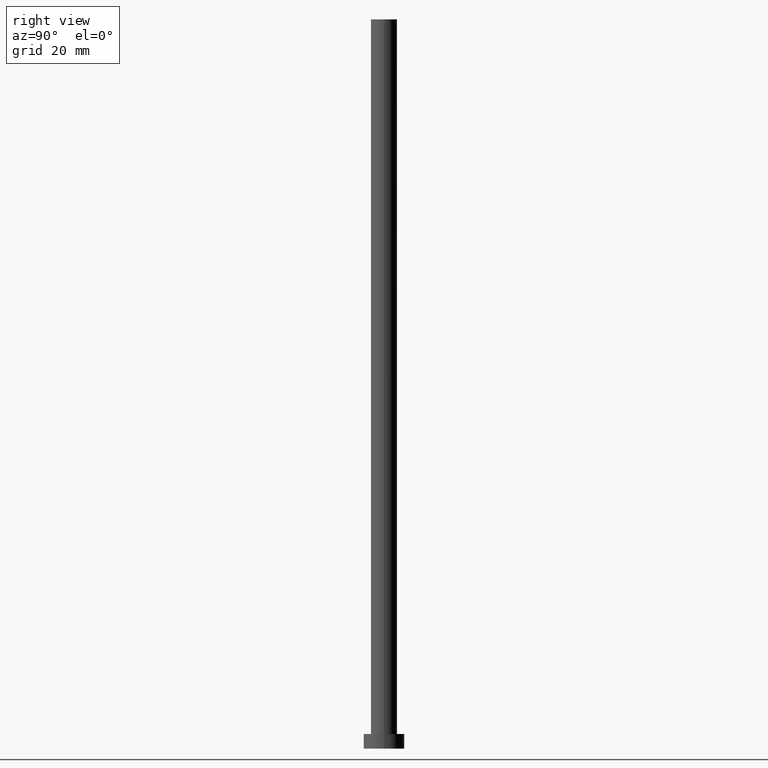
[diagram: clean part render]
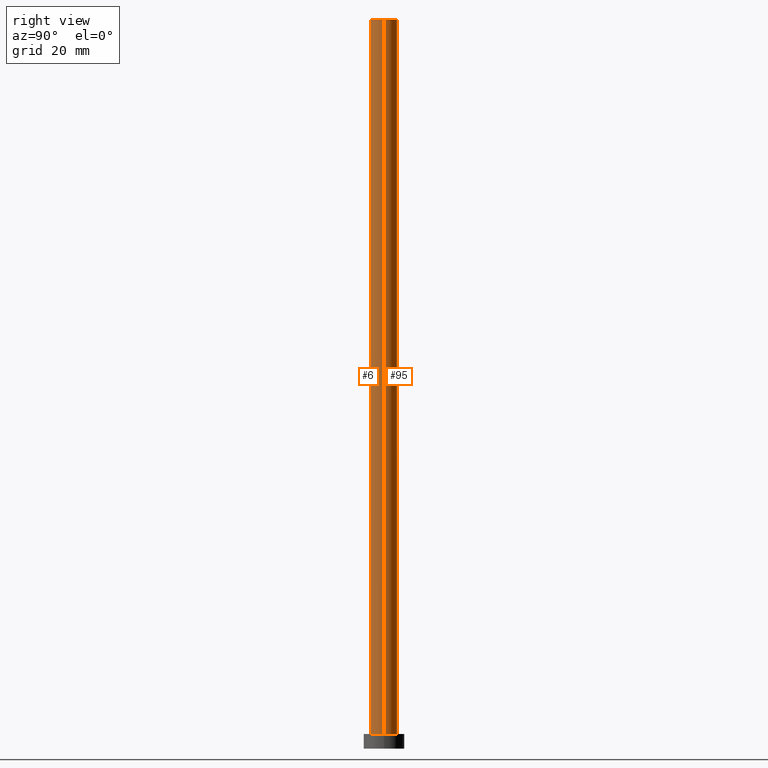
[diagram: same view with one multi-face feature highlighted, each face labeled with its STEP entity id]
A machine part, right view. The highlighted faces form ONE feature: a constant-radius fillet chain: 2 tangent blend faces with common blend radius 4.5 mm. The faces share edges in the B-rep.
Their STEP definitions:
[1] entity #95 (Cylinder):
#1 = EDGE_LOOP ( 'NONE', ( #187, #79, #147, #165 ) ) ;
#8 = CARTESIAN_POINT ( 'NONE',  ( -4.500000000000000000, 0.000000000000000000, 250.0000000000000000 ) ) ;
#10 = AXIS2_PLACEMENT_3D ( 'NONE', #35, #140, #211 ) ;
#21 = CARTESIAN_POINT ( 'NONE',  ( 4.500000000000000000, 5.510910596163088569E-16, 250.0000000000000000 ) ) ;
#33 = DIRECTION ( 'NONE',  ( -0.000000000000000000, -0.000000000000000000, -1.000000000000000000 ) ) ;
#35 = CARTESIAN_POINT ( 'NONE',  ( 0.000000000000000000, 0.000000000000000000, 250.0000000000000000 ) ) ;
#47 = VECTOR ( 'NONE', #33, 1000.000000000000000 ) ;
#49 = CIRCLE ( 'NONE', #121, 4.500000000000000000 ) ;
#66 = EDGE_CURVE ( 'NONE', #178, #185, #128, .T. ) ;
#69 = CARTESIAN_POINT ( 'NONE',  ( -4.500000000000000000, 0.000000000000000000, 5.000000000000000000 ) ) ;
#79 = ORIENTED_EDGE ( 'NONE', *, *, #66, .T. ) ;
#84 = CARTESIAN_POINT ( 'NONE',  ( 4.500000000000000000, 5.510910596163088569E-16, 5.000000000000000000 ) ) ;
#95 = ADVANCED_FACE ( 'NONE', ( #131 ), #108, .T. ) ;
#98 = VERTEX_POINT ( 'NONE', #8 ) ;
#108 = CYLINDRICAL_SURFACE ( 'NONE', #208, 4.500000000000000000 ) ;
#110 = VECTOR ( 'NONE', #244, 1000.000000000000000 ) ;
#111 = DIRECTION ( 'NONE',  ( 0.000000000000000000, 0.000000000000000000, 1.000000000000000000 ) ) ;
#119 = VERTEX_POINT ( 'NONE', #69 ) ;
#121 = AXIS2_PLACEMENT_3D ( 'NONE', #177, #111, #133 ) ;
#128 = LINE ( 'NONE', #21, #110 ) ;
#131 = FACE_OUTER_BOUND ( 'NONE', #1, .T. ) ;
#132 = CIRCLE ( 'NONE', #10, 4.500000000000000000 ) ;
#133 = DIRECTION ( 'NONE',  ( 1.000000000000000000, 0.000000000000000000, 0.000000000000000000 ) ) ;
#134 = CARTESIAN_POINT ( 'NONE',  ( -4.500000000000000000, 0.000000000000000000, 250.0000000000000000 ) ) ;
#140 = DIRECTION ( 'NONE',  ( 0.000000000000000000, 0.000000000000000000, 1.000000000000000000 ) ) ;
#147 = ORIENTED_EDGE ( 'NONE', *, *, #199, .T. ) ;
#159 = EDGE_CURVE ( 'NONE', #98, #119, #231, .T. ) ;
#165 = ORIENTED_EDGE ( 'NONE', *, *, #159, .F. ) ;
#177 = CARTESIAN_POINT ( 'NONE',  ( 0.000000000000000000, 0.000000000000000000, 5.000000000000000000 ) ) ;
#178 = VERTEX_POINT ( 'NONE', #183 ) ;
#183 = CARTESIAN_POINT ( 'NONE',  ( 4.500000000000000000, 5.510910596163088569E-16, 250.0000000000000000 ) ) ;
#185 = VERTEX_POINT ( 'NONE', #84 ) ;
#187 = ORIENTED_EDGE ( 'NONE', *, *, #203, .F. ) ;
#188 = CARTESIAN_POINT ( 'NONE',  ( 0.000000000000000000, 0.000000000000000000, 250.0000000000000000 ) ) ;
#192 = DIRECTION ( 'NONE',  ( -0.000000000000000000, -0.000000000000000000, -1.000000000000000000 ) ) ;
#199 = EDGE_CURVE ( 'NONE', #185, #119, #49, .T. ) ;
#203 = EDGE_CURVE ( 'NONE', #178, #98, #132, .T. ) ;
#207 = DIRECTION ( 'NONE',  ( -1.000000000000000000, 0.000000000000000000, 0.000000000000000000 ) ) ;
#208 = AXIS2_PLACEMENT_3D ( 'NONE', #188, #192, #207 ) ;
#211 = DIRECTION ( 'NONE',  ( 1.000000000000000000, 0.000000000000000000, 0.000000000000000000 ) ) ;
#231 = LINE ( 'NONE', #134, #47 ) ;
#244 = DIRECTION ( 'NONE',  ( -0.000000000000000000, -0.000000000000000000, -1.000000000000000000 ) ) ;
[2] entity #6 (Cylinder):
#5 = DIRECTION ( 'NONE',  ( 1.000000000000000000, 0.000000000000000000, 0.000000000000000000 ) ) ;
#6 = ADVANCED_FACE ( 'NONE', ( #29 ), #225, .T. ) ;
#8 = CARTESIAN_POINT ( 'NONE',  ( -4.500000000000000000, 0.000000000000000000, 250.0000000000000000 ) ) ;
#21 = CARTESIAN_POINT ( 'NONE',  ( 4.500000000000000000, 5.510910596163088569E-16, 250.0000000000000000 ) ) ;
#29 = FACE_OUTER_BOUND ( 'NONE', #228, .T. ) ;
#33 = DIRECTION ( 'NONE',  ( -0.000000000000000000, -0.000000000000000000, -1.000000000000000000 ) ) ;
#43 = DIRECTION ( 'NONE',  ( -1.000000000000000000, 0.000000000000000000, 0.000000000000000000 ) ) ;
#46 = CARTESIAN_POINT ( 'NONE',  ( 0.000000000000000000, 0.000000000000000000, 250.0000000000000000 ) ) ;
#47 = VECTOR ( 'NONE', #33, 1000.000000000000000 ) ;
#50 = ORIENTED_EDGE ( 'NONE', *, *, #66, .F. ) ;
#56 = ORIENTED_EDGE ( 'NONE', *, *, #145, .T. ) ;
#64 = AXIS2_PLACEMENT_3D ( 'NONE', #46, #172, #43 ) ;
#66 = EDGE_CURVE ( 'NONE', #178, #185, #128, .T. ) ;
#69 = CARTESIAN_POINT ( 'NONE',  ( -4.500000000000000000, 0.000000000000000000, 5.000000000000000000 ) ) ;
#84 = CARTESIAN_POINT ( 'NONE',  ( 4.500000000000000000, 5.510910596163088569E-16, 5.000000000000000000 ) ) ;
#89 = ORIENTED_EDGE ( 'NONE', *, *, #159, .T. ) ;
#90 = CIRCLE ( 'NONE', #129, 4.500000000000000000 ) ;
#93 = CARTESIAN_POINT ( 'NONE',  ( 0.000000000000000000, 0.000000000000000000, 5.000000000000000000 ) ) ;
#98 = VERTEX_POINT ( 'NONE', #8 ) ;
#110 = VECTOR ( 'NONE', #244, 1000.000000000000000 ) ;
#119 = VERTEX_POINT ( 'NONE', #69 ) ;
#127 = AXIS2_PLACEMENT_3D ( 'NONE', #93, #149, #248 ) ;
#128 = LINE ( 'NONE', #21, #110 ) ;
#129 = AXIS2_PLACEMENT_3D ( 'NONE', #193, #247, #5 ) ;
#134 = CARTESIAN_POINT ( 'NONE',  ( -4.500000000000000000, 0.000000000000000000, 250.0000000000000000 ) ) ;
#135 = EDGE_CURVE ( 'NONE', #98, #178, #90, .T. ) ;
#145 = EDGE_CURVE ( 'NONE', #119, #185, #245, .T. ) ;
#149 = DIRECTION ( 'NONE',  ( 0.000000000000000000, 0.000000000000000000, 1.000000000000000000 ) ) ;
#159 = EDGE_CURVE ( 'NONE', #98, #119, #231, .T. ) ;
#172 = DIRECTION ( 'NONE',  ( -0.000000000000000000, -0.000000000000000000, -1.000000000000000000 ) ) ;
#178 = VERTEX_POINT ( 'NONE', #183 ) ;
#183 = CARTESIAN_POINT ( 'NONE',  ( 4.500000000000000000, 5.510910596163088569E-16, 250.0000000000000000 ) ) ;
#185 = VERTEX_POINT ( 'NONE', #84 ) ;
#193 = CARTESIAN_POINT ( 'NONE',  ( 0.000000000000000000, 0.000000000000000000, 250.0000000000000000 ) ) ;
#196 = ORIENTED_EDGE ( 'NONE', *, *, #135, .F. ) ;
#225 = CYLINDRICAL_SURFACE ( 'NONE', #64, 4.500000000000000000 ) ;
#228 = EDGE_LOOP ( 'NONE', ( #50, #196, #89, #56 ) ) ;
#231 = LINE ( 'NONE', #134, #47 ) ;
#244 = DIRECTION ( 'NONE',  ( -0.000000000000000000, -0.000000000000000000, -1.000000000000000000 ) ) ;
#245 = CIRCLE ( 'NONE', #127, 4.500000000000000000 ) ;
#247 = DIRECTION ( 'NONE',  ( 0.000000000000000000, 0.000000000000000000, 1.000000000000000000 ) ) ;
#248 = DIRECTION ( 'NONE',  ( 1.000000000000000000, 0.000000000000000000, 0.000000000000000000 ) ) ;